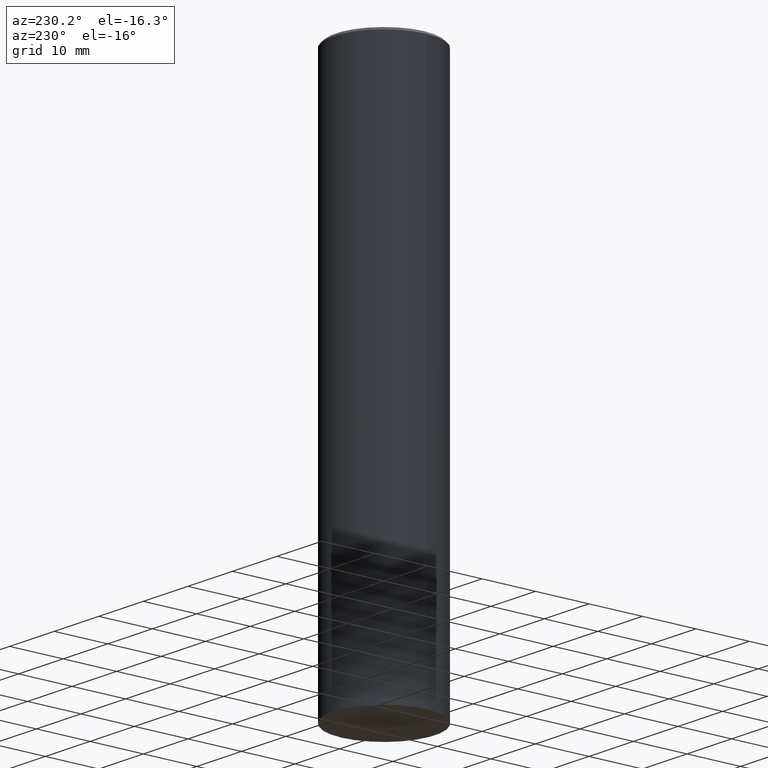
[diagram: clean part render]
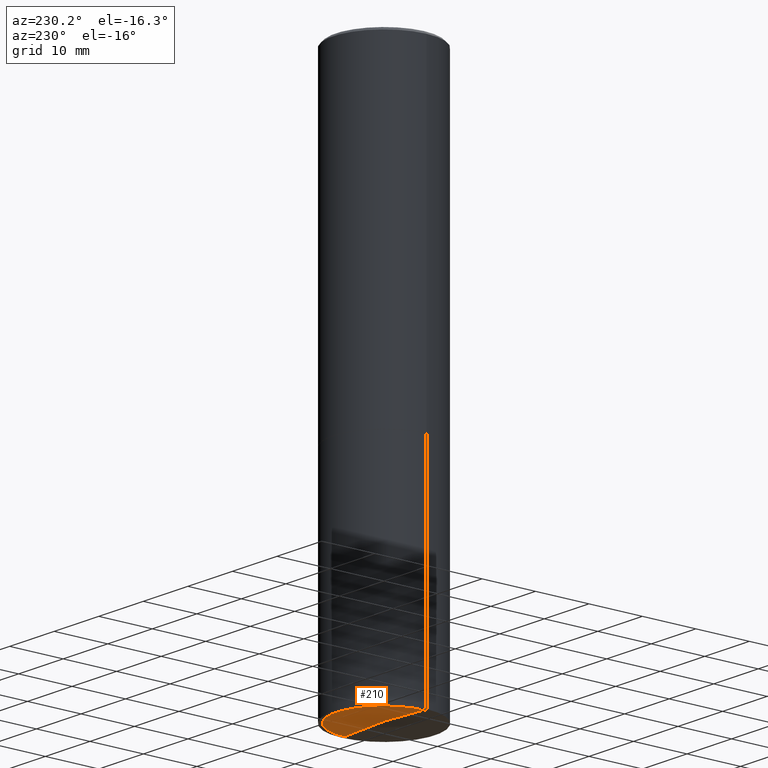
[diagram: same view with one face highlighted and labeled with its STEP entity id]
A machine part, auxiliary view. The second image highlights one B-rep face of the part: STEP entity #210.
In plain terms, the highlighted conical surface has half-angle 88 deg.
Its self-contained STEP definition (entity closure, byte-faithful):
#9 = VERTEX_POINT ( 'NONE', #75 ) ;
#11 = EDGE_CURVE ( 'NONE', #9, #375, #73, .T. ) ;
#12 = DIRECTION ( 'NONE',  ( 1.000000000000000000, -6.982962677686268288E-15, 0.000000000000000000 ) ) ;
#26 = EDGE_CURVE ( 'NONE', #371, #9, #385, .T. ) ;
#59 = CARTESIAN_POINT ( 'NONE',  ( -0.3510000000000000342, -1.151417418279978956E-14, -3.999790555173021733 ) ) ;
#73 = CIRCLE ( 'NONE', #196, 0.3510000000000000342 ) ;
#75 = CARTESIAN_POINT ( 'NONE',  ( 0.3510000000000000342, -1.637322887988547930E-14, -3.999790555173021733 ) ) ;
#77 = DIRECTION ( 'NONE',  ( -0.9993908270190957621, 6.856857904024558837E-15, -0.03489949670250019204 ) ) ;
#81 = DIRECTION ( 'NONE',  ( -2.445468806185136597E-29, 3.491481338843145583E-15, 1.000000000000000000 ) ) ;
#85 = CONICAL_SURFACE ( 'NONE', #347, 0.3510000000000000342, 1.535889741755010807 ) ;
#111 = EDGE_LOOP ( 'NONE', ( #247, #298, #178 ) ) ;
#128 = DIRECTION ( 'NONE',  ( 2.445468806185136597E-29, -3.491481338843145583E-15, -1.000000000000000000 ) ) ;
#156 = CARTESIAN_POINT ( 'NONE',  ( -0.3510000000000000342, -1.151417418279978956E-14, -3.999790555173021733 ) ) ;
#178 = ORIENTED_EDGE ( 'NONE', *, *, #11, .F. ) ;
#196 = AXIS2_PLACEMENT_3D ( 'NONE', #342, #81, #12 ) ;
#205 = VECTOR ( 'NONE', #424, 39.37007874015748143 ) ;
#210 = ADVANCED_FACE ( 'NONE', ( #433 ), #85, .F. ) ;
#211 = CARTESIAN_POINT ( 'NONE',  ( 0.3510000000000000342, -1.637322887988547930E-14, -3.999790555173021733 ) ) ;
#218 = EDGE_CURVE ( 'NONE', #371, #375, #394, .T. ) ;
#247 = ORIENTED_EDGE ( 'NONE', *, *, #26, .F. ) ;
#254 = VECTOR ( 'NONE', #77, 39.37007874015748143 ) ;
#264 = CARTESIAN_POINT ( 'NONE',  ( 9.781363033949554228E-29, -1.396519408266767050E-14, -3.999790555173021733 ) ) ;
#298 = ORIENTED_EDGE ( 'NONE', *, *, #218, .T. ) ;
#331 = CARTESIAN_POINT ( 'NONE',  ( 9.749442627304858197E-29, -1.392518487239983746E-14, -3.987533365081418424 ) ) ;
#342 = CARTESIAN_POINT ( 'NONE',  ( 9.781363033949554228E-29, -1.396519408266767050E-14, -3.999790555173021733 ) ) ;
#347 = AXIS2_PLACEMENT_3D ( 'NONE', #264, #128, #378 ) ;
#371 = VERTEX_POINT ( 'NONE', #331 ) ;
#375 = VERTEX_POINT ( 'NONE', #59 ) ;
#378 = DIRECTION ( 'NONE',  ( -1.000000000000000000, 6.982962677686268288E-15, 0.000000000000000000 ) ) ;
#385 = LINE ( 'NONE', #211, #205 ) ;
#394 = LINE ( 'NONE', #156, #254 ) ;
#424 = DIRECTION ( 'NONE',  ( 0.9993908270190957621, -6.978169709227539121E-15, -0.03489949670250019204 ) ) ;
#433 = FACE_OUTER_BOUND ( 'NONE', #111, .T. ) ;